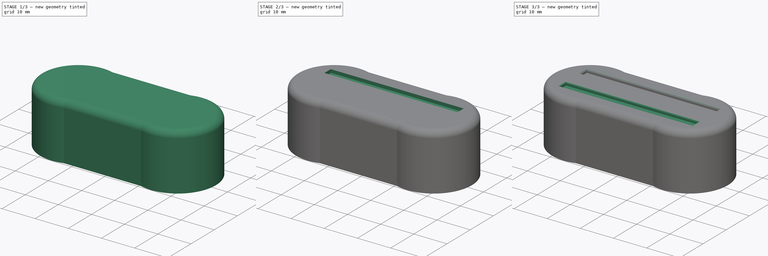
[diagram: build sequence overview — one tinted view per stage of 3, left to right]
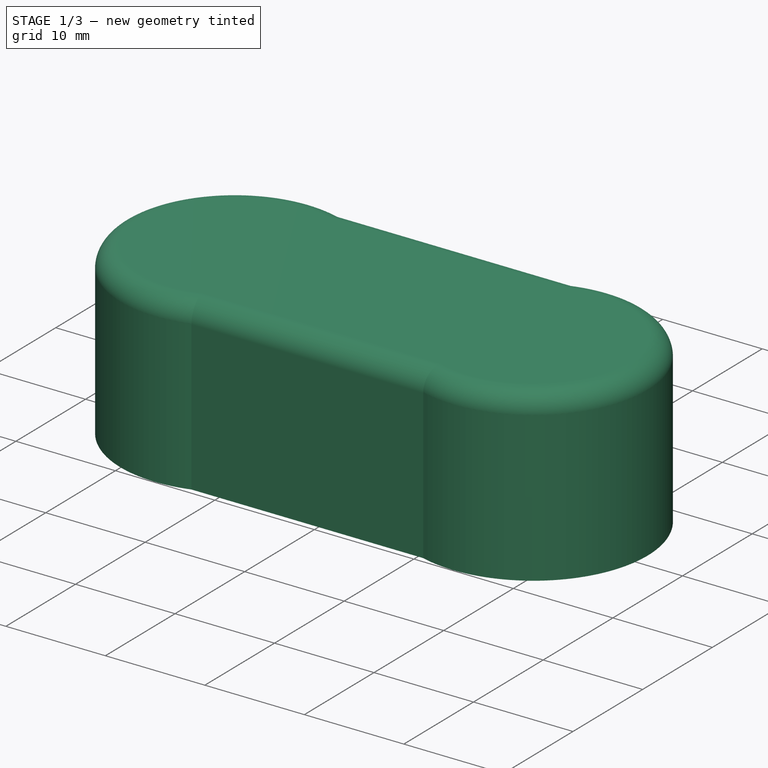
[diagram: stage 1 of 3 — iso view after this stage's code; geometry added in this stage tinted green]
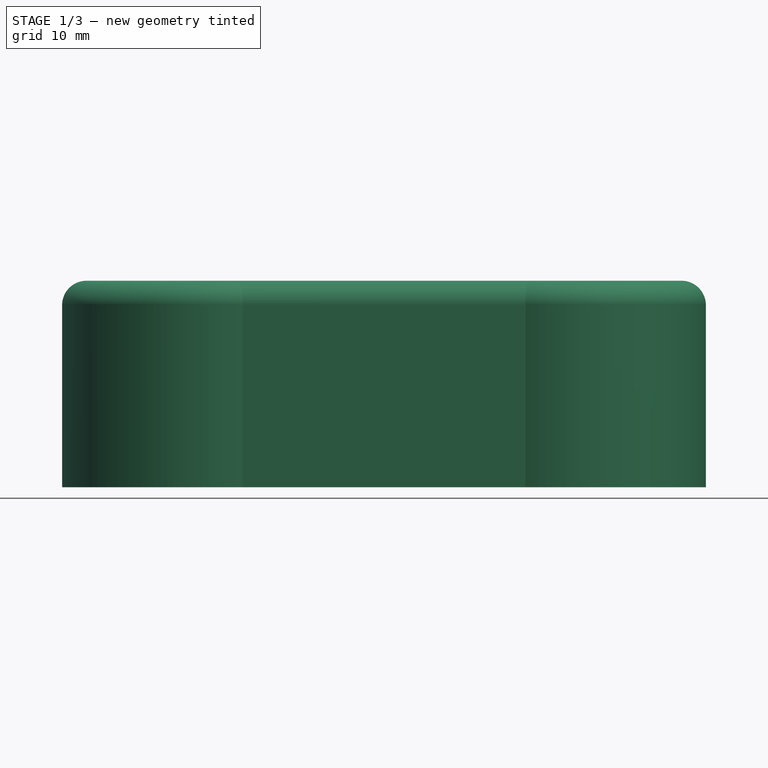
[diagram: stage 1 of 3 — front view after this stage's code; geometry added in this stage tinted green]
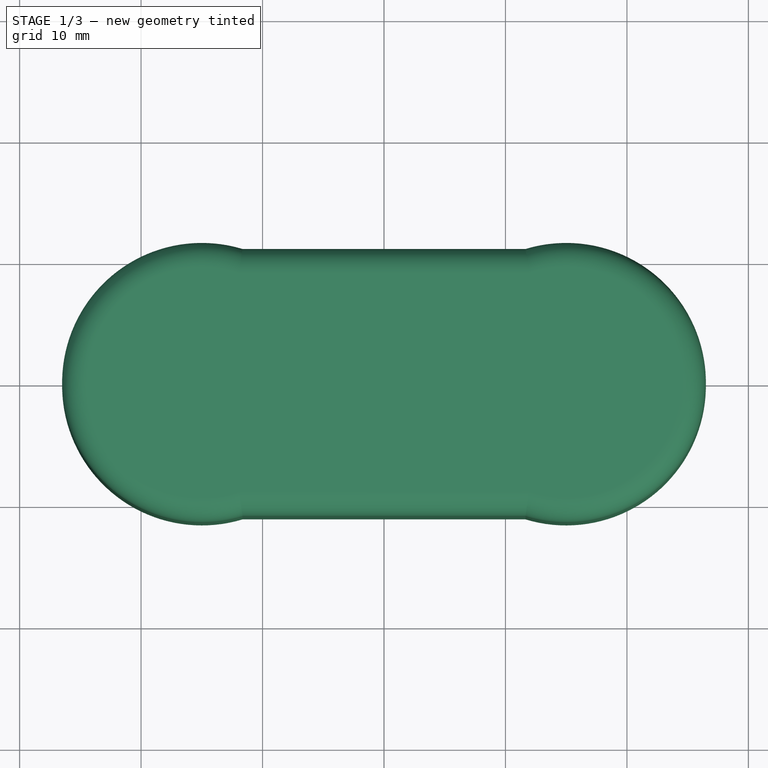
[diagram: stage 1 of 3 — top view after this stage's code; geometry added in this stage tinted green]
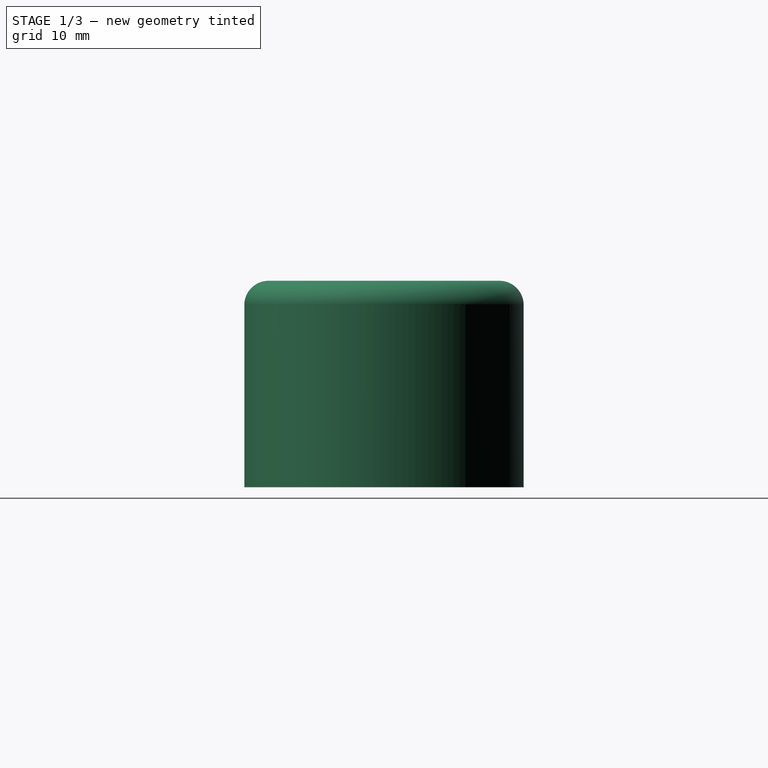
[diagram: stage 1 of 3 — right view after this stage's code; geometry added in this stage tinted green]
FCSTD DOCUMENT  (FreeCAD 0.19R23074 (Git))
Label: toilet-bumpers
License: All rights reserved
LicenseURL: http://en.wikipedia.org/wiki/All_rights_reserved
objects: Sketcher::SketchObject×2, PartDesign::Fillet×2, PartDesign::Pad×1, PartDesign::Plane×1, PartDesign::Pocket×1, PartDesign::LinearPattern×1, PartDesign::Body×1
note: 13 computed .brp shape members not serialized (recipe doc carries the construction recipe); baked Part::Feature solids carry a one-line shape summary decoded from their .brp

FEATURE [Sketcher::SketchObject] Sketch
  MapMode = 5
  Support = -> [XY_Plane]
  sketch-geometry (4):
    g0: ArcOfCircle CenterX=-15 CenterY=0 CenterZ=0 NormalX=0 NormalY=0 NormalZ=1 AngleXU=0 Radius=11.5 StartAngle=1.27483 EndAngle=5.00835
    g1: ArcOfCircle CenterX=15 CenterY=-4e-16 CenterZ=0 NormalX=0 NormalY=0 NormalZ=1 AngleXU=0 Radius=11.5 StartAngle=4.41643 EndAngle=8.14994
    g2: LineSegment StartX=-11.6459 StartY=11 StartZ=0 EndX=11.6459 EndY=11 EndZ=0
    g3: LineSegment StartX=-11.6459 StartY=-11 StartZ=0 EndX=11.6459 EndY=-11 EndZ=0
  constraints (13):
    c: Symmetric(g0,g1,g-1)
    c: Horizontal(g2)
    c: Coincident(g0,g2)
    c: Coincident(g0,g3)
    c: Coincident(g1,g3)
    c: Coincident(g1,g2)
    c: DistanceY(g0,g0) = 22
    c: Radius(g0) = 11.5
    c: Symmetric(g0,g1,g-1)
    c: Symmetric(g1,g0,g-1)
    c: DistanceX(g0,g1) = 30
    c: Symmetric(g1,g0,g-1)
    c: DistanceY(g-1,g0) = 0
FEATURE [PartDesign::Pad] Pad
  Direction = (1,1,1)
  Length = 17
  Length2 = 100
  Profile = -> Sketch
  Type = 0
FEATURE [PartDesign::Fillet] Fillet
  Base = -> Pad [Edge4,Edge10,Edge7,Edge12]
  BaseFeature = -> Pad
  Radius = 2
  SupportTransform = false
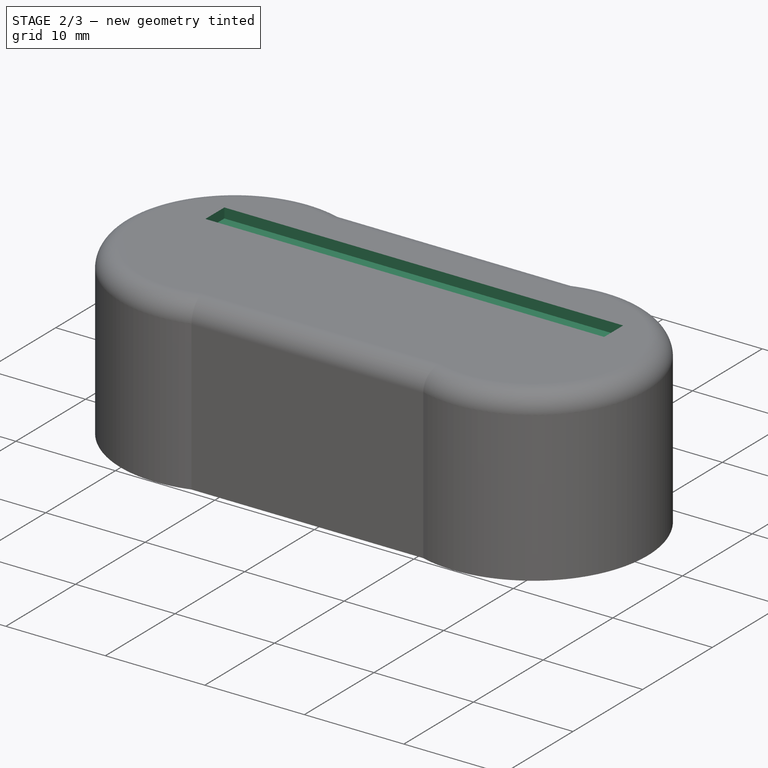
[diagram: stage 2 of 3 — iso view after this stage's code; geometry added in this stage tinted green]
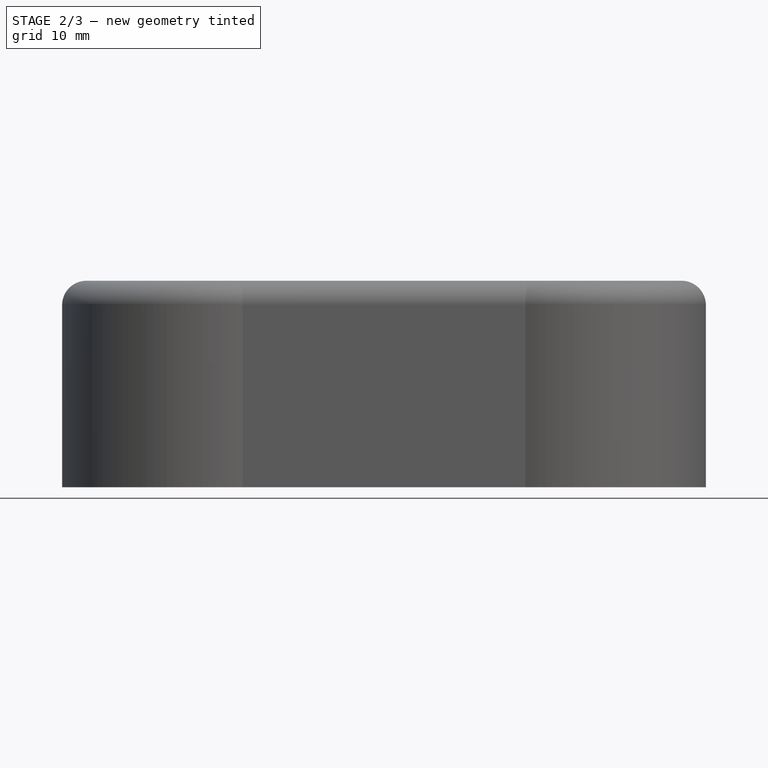
[diagram: stage 2 of 3 — front view after this stage's code; geometry added in this stage tinted green]
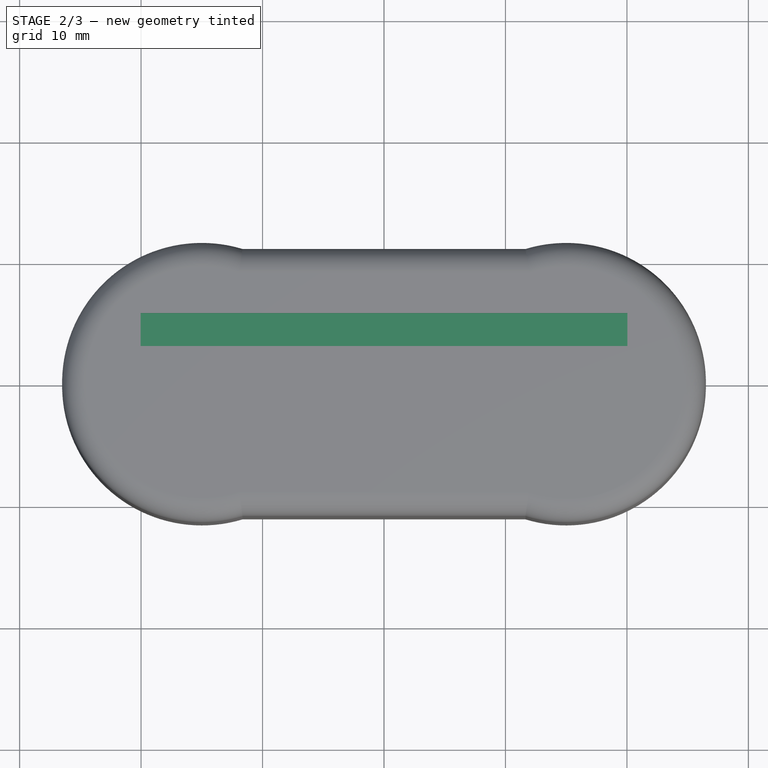
[diagram: stage 2 of 3 — top view after this stage's code; geometry added in this stage tinted green]
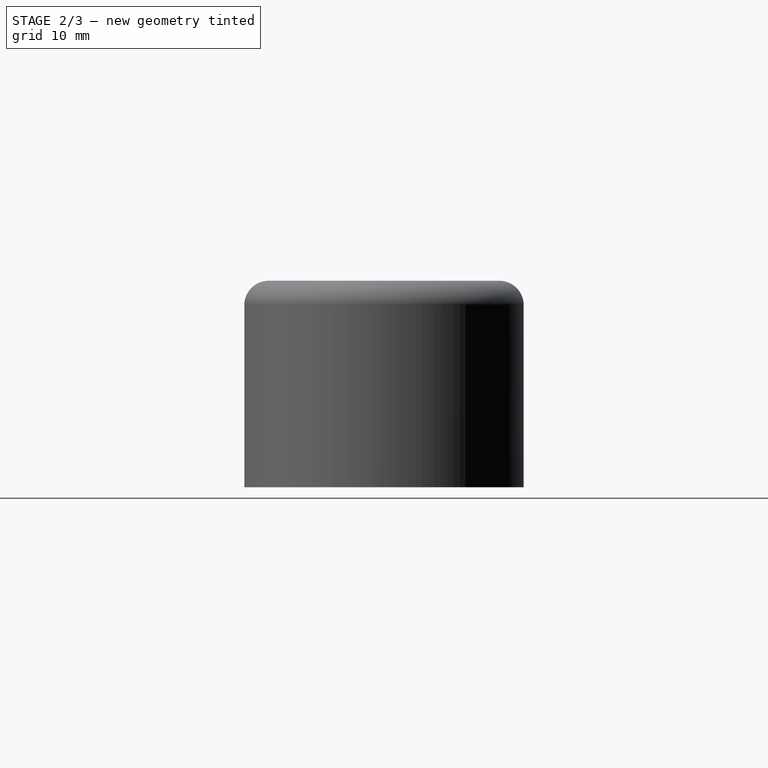
[diagram: stage 2 of 3 — right view after this stage's code; geometry added in this stage tinted green]
FEATURE [PartDesign::Plane] DatumPlane
  Length = 53
  MapMode = 5
  Placement = pos=(0,0,17) rot=(0,0,1;0rad)
  ResizeMode = 1
  Support = -> [Fillet]
  Width = 23
FEATURE [Sketcher::SketchObject] Sketch001
  MapMode = 5
  Placement = pos=(0,0,17) rot=(0,0,1;0rad)
  Support = -> [DatumPlane]
  sketch-geometry (4):
    g0: LineSegment StartX=-20.0385 StartY=5.70294 StartZ=0 EndX=20.0422 EndY=5.70294 EndZ=0
    g1: LineSegment StartX=20.0422 StartY=5.70294 StartZ=0 EndX=20.0422 EndY=2.97772 EndZ=0
    g2: LineSegment StartX=20.0422 StartY=2.97772 StartZ=0 EndX=-20.0385 EndY=2.97772 EndZ=0
    g3: LineSegment StartX=-20.0385 StartY=2.97772 StartZ=0 EndX=-20.0385 EndY=5.70294 EndZ=0
  constraints (8):
    c: Coincident(g0,g1)
    c: Coincident(g1,g2)
    c: Coincident(g2,g3)
    c: Coincident(g3,g0)
    c: Horizontal(g0)
    c: Horizontal(g2)
    c: Vertical(g1)
    c: Vertical(g3)
FEATURE [PartDesign::Pocket] Pocket
  BaseFeature = -> Fillet
  Length = 1
  Length2 = 100
  Profile = -> Sketch001
  Type = 0
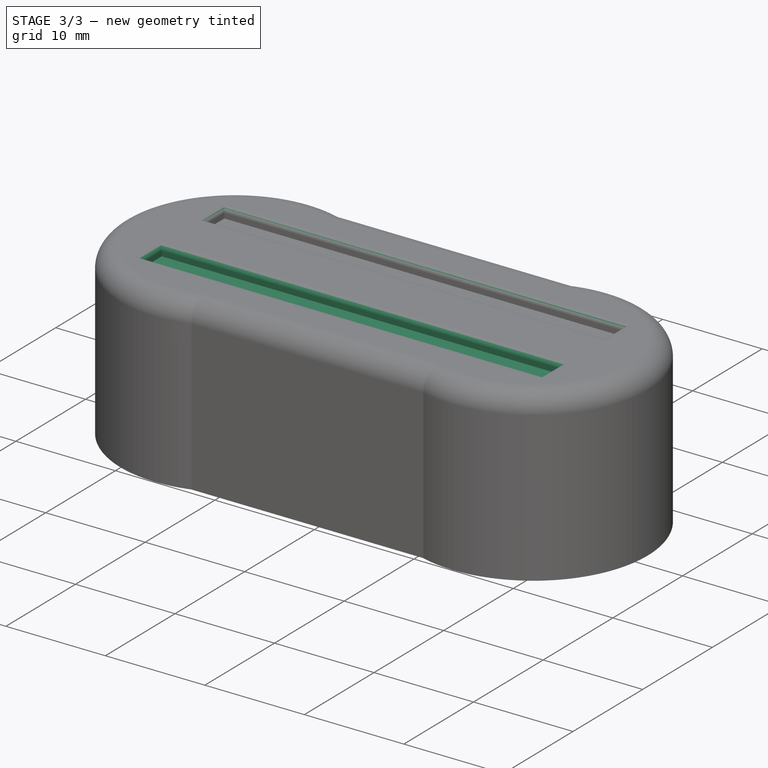
[diagram: stage 3 of 3 — iso view after this stage's code; geometry added in this stage tinted green]
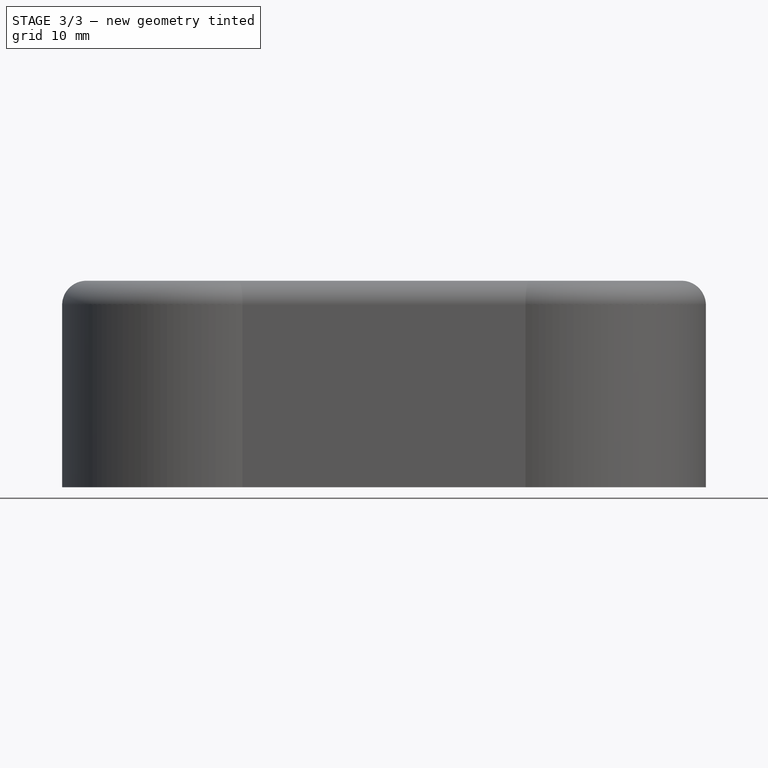
[diagram: stage 3 of 3 — front view after this stage's code; geometry added in this stage tinted green]
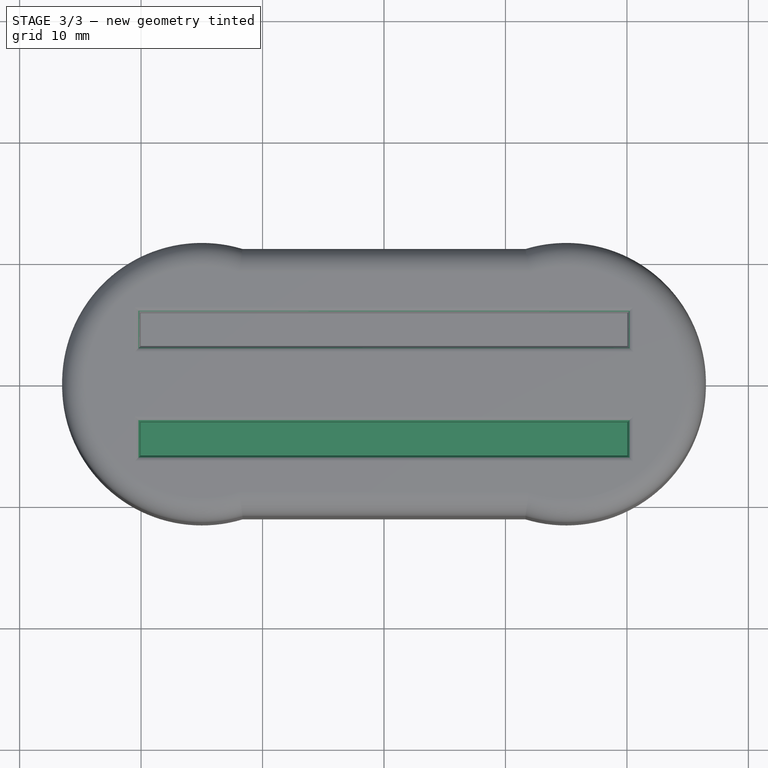
[diagram: stage 3 of 3 — top view after this stage's code; geometry added in this stage tinted green]
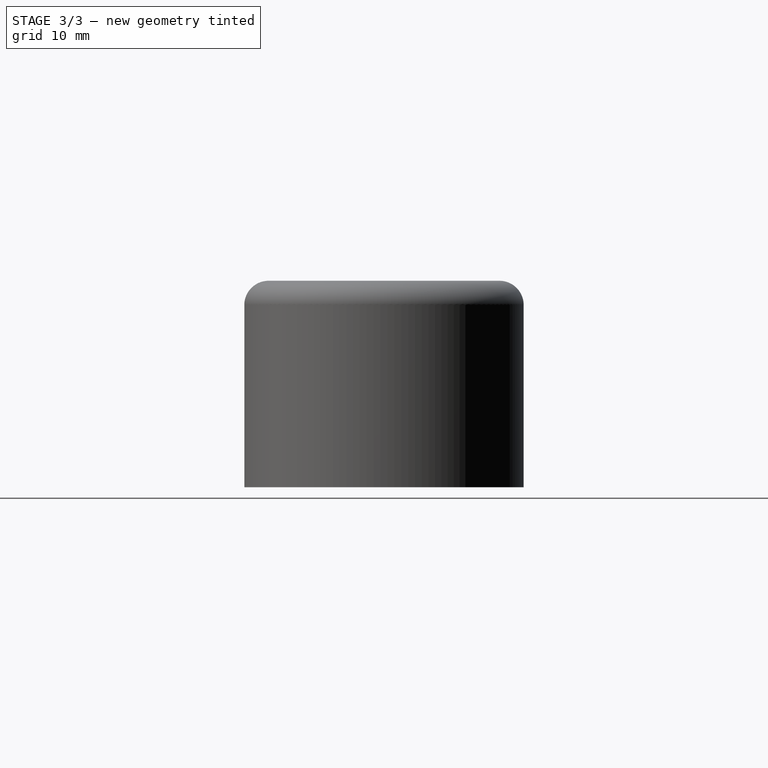
[diagram: stage 3 of 3 — right view after this stage's code; geometry added in this stage tinted green]
FEATURE [PartDesign::Fillet] Fillet001
  Base = -> Pocket [Edge23,Edge20,Edge21,Edge22]
  BaseFeature = -> Pocket
  Radius = 0.5
  SupportTransform = false
FEATURE [PartDesign::LinearPattern] LinearPattern
  BaseFeature = -> Fillet001
  Direction = -> Y_Axis
  Length = 9
  Occurrences = 2
  Originals = -> [Fillet001,Pocket]
  Reversed = true
FEATURE [PartDesign::Body] Body
  Group = -> [Sketch,Pad,Fillet,DatumPlane,Sketch001,Pocket,Fillet001,LinearPattern]
  Origin = -> Origin
  Tip = -> LinearPattern
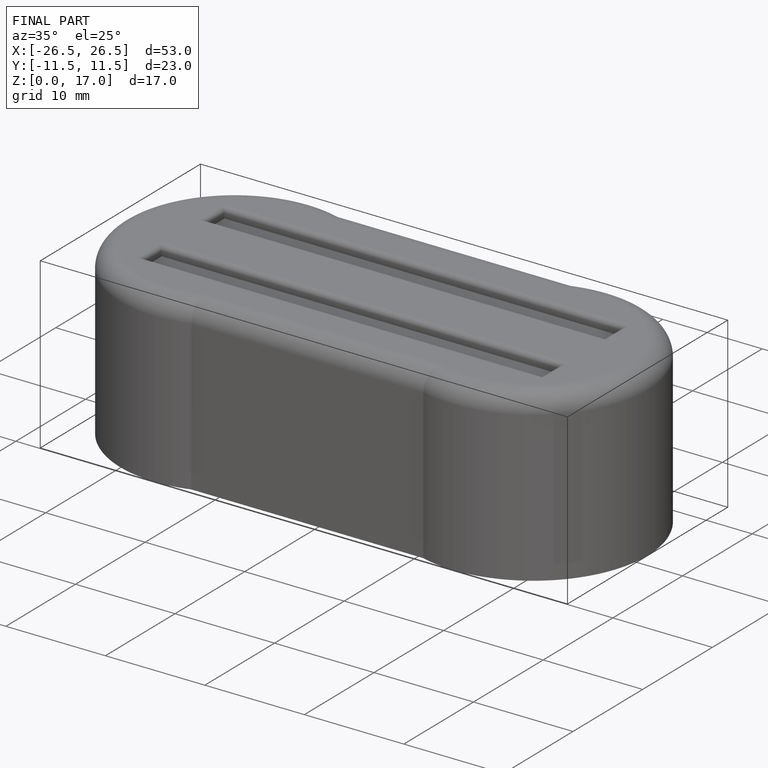
[diagram: finished part — iso view with bounding-box wireframe]
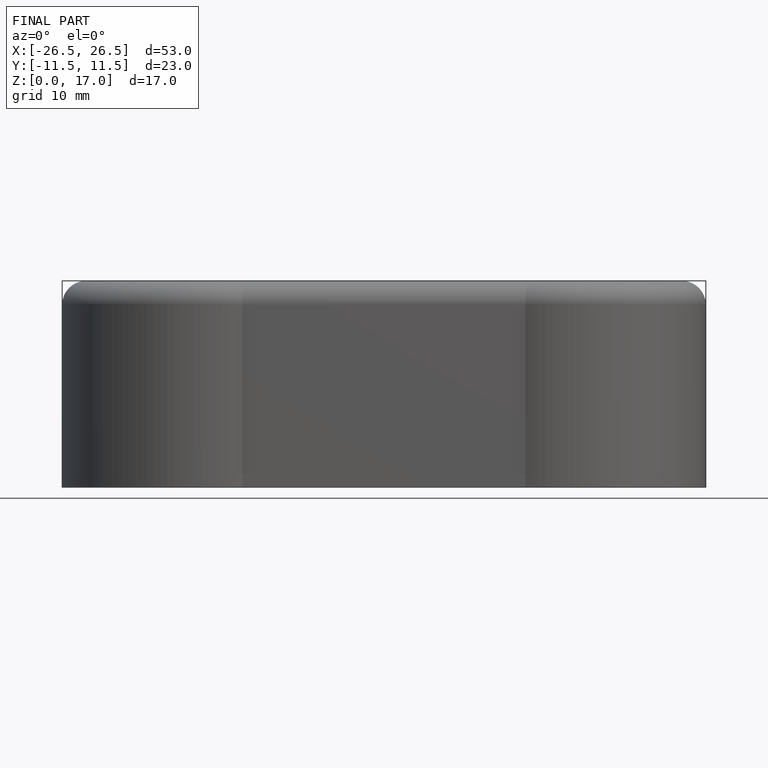
[diagram: finished part — front view with bounding-box wireframe]
